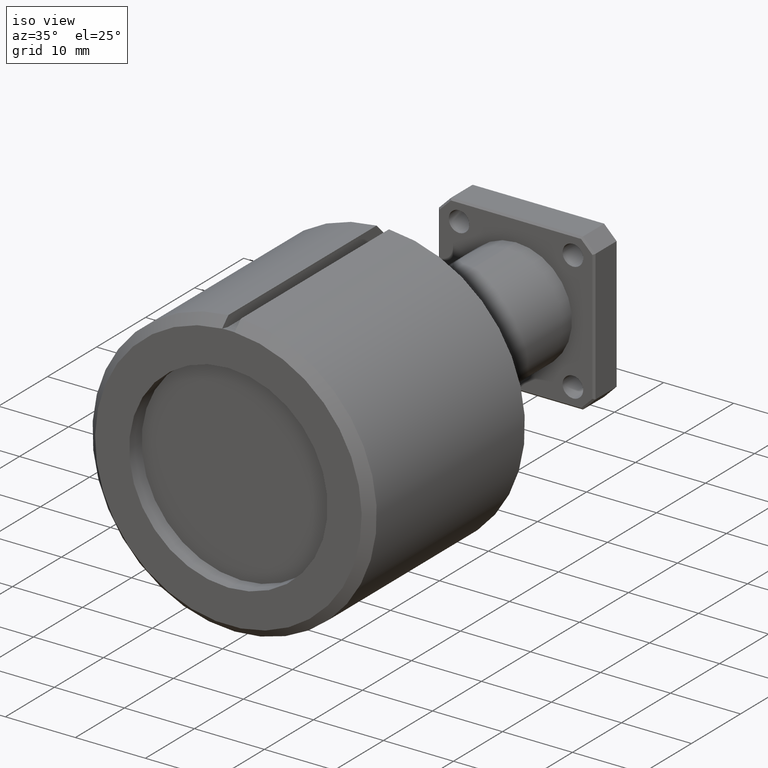
[diagram: clean part render]
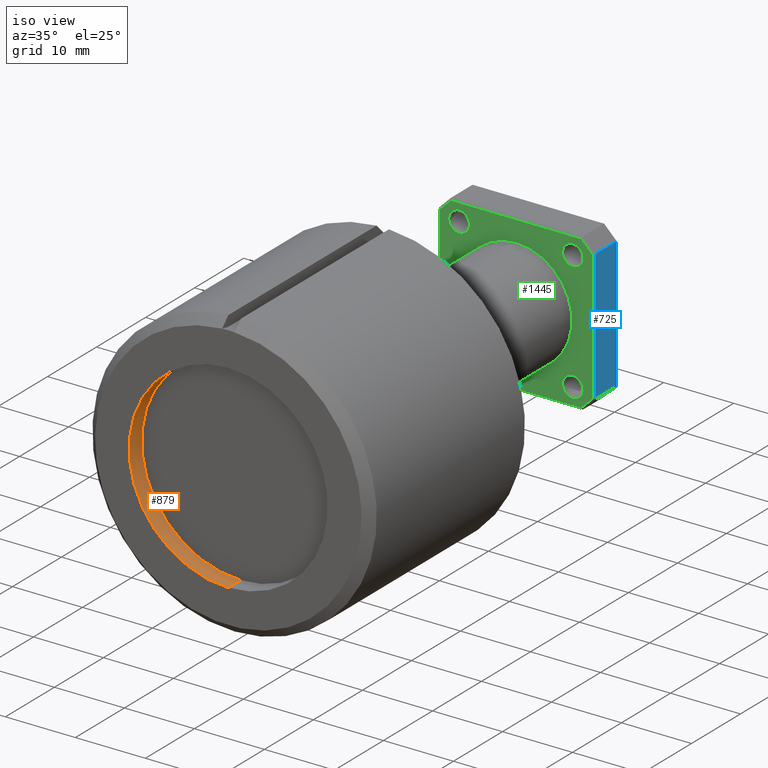
[diagram: same view with three faces highlighted in distinct colors, each labeled with its STEP entity id]
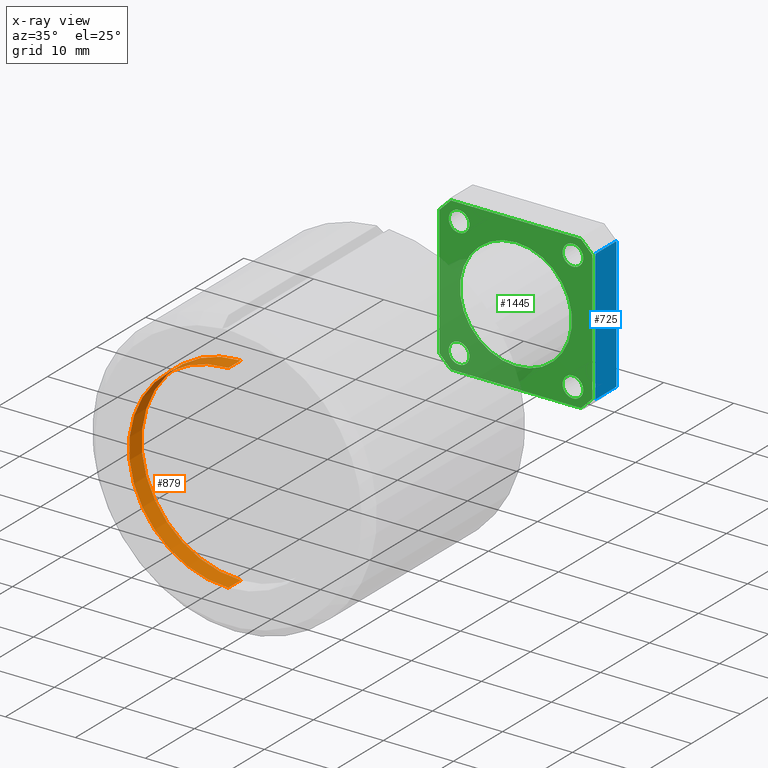
[diagram: x-ray of the same camera — body ghosted, the three highlighted faces saturated]
A machine part, iso view with three faces highlighted in distinct colors.
The next image is the same camera in x-ray (body ghosted, the three faces saturated) — at least one of them is partly hidden behind the body in this view.
Their STEP definitions:

[orange] entity #879 — the highlighted cylindrical surface (partial cylindrical patch) has radius 14.1862 mm, axis along (-0, -1, -0).
#6 = VERTEX_POINT ( 'NONE', #17 ) ;
#17 = CARTESIAN_POINT ( 'NONE',  ( 6.839774837917879664E-17, -1.033357296908698819, 2.378506395338603863 ) ) ;
#40 = DIRECTION ( 'NONE',  ( -0.000000000000000000, -1.000000000000000000, -0.000000000000000000 ) ) ;
#73 = ORIENTED_EDGE ( 'NONE', *, *, #1399, .F. ) ;
#74 = EDGE_CURVE ( 'NONE', #1497, #1557, #1198, .T. ) ;
#78 = DIRECTION ( 'NONE',  ( 0.000000000000000000, -1.000000000000000000, 0.000000000000000000 ) ) ;
#96 = CARTESIAN_POINT ( 'NONE',  ( 0.000000000000000000, -1.033357296908698819, 1.261486395338603739 ) ) ;
#129 = ORIENTED_EDGE ( 'NONE', *, *, #1486, .T. ) ;
#263 = EDGE_LOOP ( 'NONE', ( #73, #1221, #129, #703 ) ) ;
#313 = DIRECTION ( 'NONE',  ( 0.000000000000000000, 0.000000000000000000, -1.000000000000000000 ) ) ;
#346 = CARTESIAN_POINT ( 'NONE',  ( 0.000000000000000000, -1.133357296908698908, 1.261486395338603739 ) ) ;
#350 = AXIS2_PLACEMENT_3D ( 'NONE', #780, #78, #1167 ) ;
#425 = DIRECTION ( 'NONE',  ( -0.000000000000000000, -1.000000000000000000, -0.000000000000000000 ) ) ;
#534 = FACE_OUTER_BOUND ( 'NONE', #263, .T. ) ;
#703 = ORIENTED_EDGE ( 'NONE', *, *, #74, .F. ) ;
#750 = CIRCLE ( 'NONE', #1227, 0.5585099999999999509 ) ;
#780 = CARTESIAN_POINT ( 'NONE',  ( 0.000000000000000000, -1.133357296908698908, 1.819996395338603579 ) ) ;
#796 = DIRECTION ( 'NONE',  ( 0.000000000000000000, 0.000000000000000000, -1.000000000000000000 ) ) ;
#879 = ADVANCED_FACE ( 'NONE', ( #534 ), #1023, .F. ) ;
#964 = CARTESIAN_POINT ( 'NONE',  ( 0.000000000000000000, -1.033357296908698819, 1.261486395338603739 ) ) ;
#1023 = CYLINDRICAL_SURFACE ( 'NONE', #1111, 0.5585099999999999509 ) ;
#1067 = EDGE_CURVE ( 'NONE', #6, #1468, #1069, .T. ) ;
#1069 = LINE ( 'NONE', #1160, #1546 ) ;
#1111 = AXIS2_PLACEMENT_3D ( 'NONE', #1524, #425, #796 ) ;
#1158 = CARTESIAN_POINT ( 'NONE',  ( 0.000000000000000000, -1.033357296908698819, 1.819996395338603579 ) ) ;
#1160 = CARTESIAN_POINT ( 'NONE',  ( 6.839774837917880897E-17, -1.033357296908698819, 2.378506395338603863 ) ) ;
#1167 = DIRECTION ( 'NONE',  ( 0.000000000000000000, 0.000000000000000000, -1.000000000000000000 ) ) ;
#1174 = DIRECTION ( 'NONE',  ( 0.000000000000000000, -1.000000000000000000, 0.000000000000000000 ) ) ;
#1198 = LINE ( 'NONE', #964, #1318 ) ;
#1221 = ORIENTED_EDGE ( 'NONE', *, *, #1067, .T. ) ;
#1227 = AXIS2_PLACEMENT_3D ( 'NONE', #1158, #1174, #313 ) ;
#1288 = CARTESIAN_POINT ( 'NONE',  ( 6.839774837917879664E-17, -1.133357296908698908, 2.378506395338603863 ) ) ;
#1290 = DIRECTION ( 'NONE',  ( -0.000000000000000000, -1.000000000000000000, -0.000000000000000000 ) ) ;
#1318 = VECTOR ( 'NONE', #40, 39.37007874015748143 ) ;
#1399 = EDGE_CURVE ( 'NONE', #6, #1497, #750, .T. ) ;
#1459 = CIRCLE ( 'NONE', #350, 0.5585099999999999509 ) ;
#1468 = VERTEX_POINT ( 'NONE', #1288 ) ;
#1486 = EDGE_CURVE ( 'NONE', #1468, #1557, #1459, .T. ) ;
#1497 = VERTEX_POINT ( 'NONE', #96 ) ;
#1524 = CARTESIAN_POINT ( 'NONE',  ( 0.000000000000000000, -1.033357296908698819, 1.819996395338603579 ) ) ;
#1546 = VECTOR ( 'NONE', #1290, 39.37007874015748143 ) ;
#1557 = VERTEX_POINT ( 'NONE', #346 ) ;

[blue] entity #725 — the highlighted planar face has unit normal (-1, 0, 0).
#2 = DIRECTION ( 'NONE',  ( 1.552186360036512968E-16, 0.000000000000000000, 1.000000000000000000 ) ) ;
#82 = VECTOR ( 'NONE', #659, 39.37007874015748143 ) ;
#115 = ORIENTED_EDGE ( 'NONE', *, *, #1033, .T. ) ;
#154 = ORIENTED_EDGE ( 'NONE', *, *, #804, .T. ) ;
#185 = VECTOR ( 'NONE', #885, 39.37007874015748143 ) ;
#238 = CARTESIAN_POINT ( 'NONE',  ( 0.4400000000000000022, 1.186642703091300710, 2.189996395338603907 ) ) ;
#266 = CARTESIAN_POINT ( 'NONE',  ( 0.4399999999999998912, 1.186642703091300710, 1.449996395338603694 ) ) ;
#302 = LINE ( 'NONE', #1507, #82 ) ;
#420 = DIRECTION ( 'NONE',  ( -1.552186360036512968E-16, 0.000000000000000000, -1.000000000000000000 ) ) ;
#494 = FACE_OUTER_BOUND ( 'NONE', #1466, .T. ) ;
#502 = DIRECTION ( 'NONE',  ( -1.000000000000000000, 0.000000000000000000, 1.552186360036512968E-16 ) ) ;
#547 = CARTESIAN_POINT ( 'NONE',  ( 0.4399999999999998912, 1.356642703091300861, 1.449996395338603694 ) ) ;
#585 = EDGE_CURVE ( 'NONE', #1168, #1301, #847, .T. ) ;
#652 = VECTOR ( 'NONE', #420, 39.37007874015748143 ) ;
#659 = DIRECTION ( 'NONE',  ( 0.000000000000000000, -1.000000000000000000, 0.000000000000000000 ) ) ;
#705 = CARTESIAN_POINT ( 'NONE',  ( 0.4400000000000000022, 1.356642703091300861, 2.189996395338603907 ) ) ;
#725 = ADVANCED_FACE ( 'NONE', ( #494 ), #992, .F. ) ;
#768 = VERTEX_POINT ( 'NONE', #266 ) ;
#804 = EDGE_CURVE ( 'NONE', #768, #1168, #1232, .T. ) ;
#847 = LINE ( 'NONE', #705, #1172 ) ;
#885 = DIRECTION ( 'NONE',  ( 0.000000000000000000, 1.000000000000000000, 0.000000000000000000 ) ) ;
#898 = LINE ( 'NONE', #1027, #652 ) ;
#983 = CARTESIAN_POINT ( 'NONE',  ( 0.4399999999999998912, 1.366642703091300648, 1.379996395338603632 ) ) ;
#992 = PLANE ( 'NONE',  #1335 ) ;
#999 = CARTESIAN_POINT ( 'NONE',  ( 0.4399999999999998912, 1.366642703091300648, 1.449996395338603694 ) ) ;
#1001 = CARTESIAN_POINT ( 'NONE',  ( 0.4400000000000000022, 1.356642703091300861, 2.189996395338603907 ) ) ;
#1027 = CARTESIAN_POINT ( 'NONE',  ( 0.4399999999999998912, 1.186642703091300710, 1.379996395338603632 ) ) ;
#1033 = EDGE_CURVE ( 'NONE', #1559, #768, #898, .T. ) ;
#1168 = VERTEX_POINT ( 'NONE', #547 ) ;
#1172 = VECTOR ( 'NONE', #2, 39.37007874015748143 ) ;
#1213 = ORIENTED_EDGE ( 'NONE', *, *, #1475, .T. ) ;
#1232 = LINE ( 'NONE', #999, #185 ) ;
#1301 = VERTEX_POINT ( 'NONE', #1001 ) ;
#1335 = AXIS2_PLACEMENT_3D ( 'NONE', #983, #502, #1465 ) ;
#1465 = DIRECTION ( 'NONE',  ( 1.552186360036512968E-16, 0.000000000000000000, 1.000000000000000000 ) ) ;
#1466 = EDGE_LOOP ( 'NONE', ( #1213, #115, #154, #1483 ) ) ;
#1475 = EDGE_CURVE ( 'NONE', #1301, #1559, #302, .T. ) ;
#1483 = ORIENTED_EDGE ( 'NONE', *, *, #585, .T. ) ;
#1507 = CARTESIAN_POINT ( 'NONE',  ( 0.4400000000000000022, 1.366642703091300648, 2.189996395338603907 ) ) ;
#1559 = VERTEX_POINT ( 'NONE', #238 ) ;

[green] entity #1445 — the highlighted planar face has unit normal (0, 1, 0).
#19 = DIRECTION ( 'NONE',  ( 0.000000000000000000, 1.000000000000000000, 0.000000000000000000 ) ) ;
#53 = CARTESIAN_POINT ( 'NONE',  ( -0.4329289321881343855, 1.176642703091300923, 2.182925327526738180 ) ) ;
#69 = CARTESIAN_POINT ( 'NONE',  ( 0.3658578643762689930, 1.176642703091300923, 1.389996395338603863 ) ) ;
#72 = CARTESIAN_POINT ( 'NONE',  ( -0.3200000000000001177, 1.176642703091300701, 2.212996395338604039 ) ) ;
#75 = DIRECTION ( 'NONE',  ( -1.552186360036512968E-16, 0.000000000000000000, -1.000000000000000000 ) ) ;
#80 = EDGE_CURVE ( 'NONE', #1131, #370, #754, .T. ) ;
#81 = CARTESIAN_POINT ( 'NONE',  ( 0.3200000000000002842, 1.176642703091300701, 2.154996395338603765 ) ) ;
#91 = DIRECTION ( 'NONE',  ( 0.000000000000000000, 0.000000000000000000, 1.000000000000000000 ) ) ;
#95 = DIRECTION ( 'NONE',  ( -1.000000000000000000, 0.000000000000000000, 0.000000000000000000 ) ) ;
#99 = AXIS2_PLACEMENT_3D ( 'NONE', #1521, #198, #1402 ) ;
#107 = CARTESIAN_POINT ( 'NONE',  ( 0.000000000000000000, 1.176642703091300923, 2.249996395338603516 ) ) ;
#109 = AXIS2_PLACEMENT_3D ( 'NONE', #1207, #972, #1455 ) ;
#126 = EDGE_CURVE ( 'NONE', #460, #891, #989, .T. ) ;
#134 = AXIS2_PLACEMENT_3D ( 'NONE', #760, #292, #175 ) ;
#135 = LINE ( 'NONE', #53, #732 ) ;
#138 = ORIENTED_EDGE ( 'NONE', *, *, #1286, .F. ) ;
#144 = VECTOR ( 'NONE', #441, 39.37007874015748143 ) ;
#164 = CARTESIAN_POINT ( 'NONE',  ( -0.4299999999999998268, 1.176642703091300923, 2.185854259714872683 ) ) ;
#175 = DIRECTION ( 'NONE',  ( 0.000000000000000000, 0.000000000000000000, 1.000000000000000000 ) ) ;
#177 = AXIS2_PLACEMENT_3D ( 'NONE', #1406, #326, #436 ) ;
#179 = ORIENTED_EDGE ( 'NONE', *, *, #845, .T. ) ;
#187 = FACE_BOUND ( 'NONE', #1013, .T. ) ;
#198 = DIRECTION ( 'NONE',  ( 0.000000000000000000, 1.000000000000000000, 0.000000000000000000 ) ) ;
#201 = ORIENTED_EDGE ( 'NONE', *, *, #126, .T. ) ;
#213 = LINE ( 'NONE', #1176, #1438 ) ;
#217 = CARTESIAN_POINT ( 'NONE',  ( 0.4299999999999996603, 1.176642703091300923, 1.454138530962334697 ) ) ;
#227 = CIRCLE ( 'NONE', #1305, 0.05800000000000003764 ) ;
#248 = VERTEX_POINT ( 'NONE', #164 ) ;
#278 = VECTOR ( 'NONE', #389, 39.37007874015748143 ) ;
#288 = EDGE_CURVE ( 'NONE', #340, #886, #740, .T. ) ;
#291 = ORIENTED_EDGE ( 'NONE', *, *, #495, .T. ) ;
#292 = DIRECTION ( 'NONE',  ( 0.000000000000000000, 1.000000000000000000, 0.000000000000000000 ) ) ;
#304 = CARTESIAN_POINT ( 'NONE',  ( -0.3200000000000001177, 1.176642703091300701, 1.484996395338603614 ) ) ;
#321 = CARTESIAN_POINT ( 'NONE',  ( -0.4299999999999999933, 1.176642703091300923, 1.454138530962334475 ) ) ;
#326 = DIRECTION ( 'NONE',  ( 0.000000000000000000, 1.000000000000000000, 0.000000000000000000 ) ) ;
#328 = CARTESIAN_POINT ( 'NONE',  ( -0.3629289321881341013, 1.176642703091300923, 1.387067463150468916 ) ) ;
#331 = EDGE_LOOP ( 'NONE', ( #201, #1046, #291, #421, #179, #1372, #1499, #612 ) ) ;
#334 = FACE_BOUND ( 'NONE', #1121, .T. ) ;
#340 = VERTEX_POINT ( 'NONE', #1410 ) ;
#355 = AXIS2_PLACEMENT_3D ( 'NONE', #1478, #1214, #1205 ) ;
#359 = EDGE_CURVE ( 'NONE', #1171, #1029, #1217, .T. ) ;
#361 = DIRECTION ( 'NONE',  ( 0.000000000000000000, 1.000000000000000000, 0.000000000000000000 ) ) ;
#370 = VERTEX_POINT ( 'NONE', #72 ) ;
#372 = ORIENTED_EDGE ( 'NONE', *, *, #973, .F. ) ;
#389 = DIRECTION ( 'NONE',  ( 1.552186360036512968E-16, 0.000000000000000000, 1.000000000000000000 ) ) ;
#407 = CIRCLE ( 'NONE', #134, 0.05800000000000003764 ) ;
#417 = EDGE_CURVE ( 'NONE', #987, #460, #912, .T. ) ;
#419 = CARTESIAN_POINT ( 'NONE',  ( 0.3199999999999998401, 1.176642703091300701, 1.542996395338603222 ) ) ;
#421 = ORIENTED_EDGE ( 'NONE', *, *, #931, .T. ) ;
#427 = DIRECTION ( 'NONE',  ( 0.000000000000000000, 0.000000000000000000, 1.000000000000000000 ) ) ;
#429 = DIRECTION ( 'NONE',  ( 0.000000000000000000, 0.000000000000000000, 1.000000000000000000 ) ) ;
#433 = CARTESIAN_POINT ( 'NONE',  ( -0.4300000000000002154, 1.176642703091300923, 6.674401348157008968E-17 ) ) ;
#436 = DIRECTION ( 'NONE',  ( 0.000000000000000000, -0.000000000000000000, 1.000000000000000000 ) ) ;
#441 = DIRECTION ( 'NONE',  ( 0.7071067811865461294, 0.000000000000000000, 0.7071067811865489050 ) ) ;
#443 = FACE_BOUND ( 'NONE', #1501, .T. ) ;
#451 = CARTESIAN_POINT ( 'NONE',  ( -0.3200000000000001177, 1.176642703091300701, 2.096996395338603936 ) ) ;
#460 = VERTEX_POINT ( 'NONE', #217 ) ;
#463 = CARTESIAN_POINT ( 'NONE',  ( 0.3200000000000002842, 1.176642703091300701, 2.212996395338604039 ) ) ;
#475 = DIRECTION ( 'NONE',  ( 0.000000000000000000, 0.000000000000000000, -1.000000000000000000 ) ) ;
#495 = EDGE_CURVE ( 'NONE', #1261, #943, #1178, .T. ) ;
#510 = CIRCLE ( 'NONE', #1474, 0.05800000000000003764 ) ;
#530 = CARTESIAN_POINT ( 'NONE',  ( -0.3658578643762686600, 1.176642703091300923, 2.249996395338603516 ) ) ;
#553 = CARTESIAN_POINT ( 'NONE',  ( -0.3200000000000001177, 1.176642703091300701, 1.426996395338603563 ) ) ;
#555 = EDGE_CURVE ( 'NONE', #1385, #963, #510, .T. ) ;
#561 = ORIENTED_EDGE ( 'NONE', *, *, #288, .T. ) ;
#591 = VECTOR ( 'NONE', #95, 39.37007874015748143 ) ;
#605 = EDGE_LOOP ( 'NONE', ( #372, #138 ) ) ;
#608 = DIRECTION ( 'NONE',  ( -0.7071067811865474617, 0.000000000000000000, -0.7071067811865474617 ) ) ;
#612 = ORIENTED_EDGE ( 'NONE', *, *, #417, .T. ) ;
#632 = EDGE_CURVE ( 'NONE', #370, #1131, #957, .T. ) ;
#635 = ORIENTED_EDGE ( 'NONE', *, *, #80, .T. ) ;
#647 = LINE ( 'NONE', #869, #1264 ) ;
#649 = VERTEX_POINT ( 'NONE', #1199 ) ;
#665 = LINE ( 'NONE', #433, #1390 ) ;
#687 = DIRECTION ( 'NONE',  ( 0.000000000000000000, 1.000000000000000000, 0.000000000000000000 ) ) ;
#697 = EDGE_CURVE ( 'NONE', #891, #1261, #647, .T. ) ;
#701 = EDGE_CURVE ( 'NONE', #963, #1385, #407, .T. ) ;
#728 = AXIS2_PLACEMENT_3D ( 'NONE', #1452, #1102, #475 ) ;
#732 = VECTOR ( 'NONE', #608, 39.37007874015748854 ) ;
#740 = CIRCLE ( 'NONE', #99, 0.05800000000000003764 ) ;
#754 = CIRCLE ( 'NONE', #355, 0.05800000000000003764 ) ;
#760 = CARTESIAN_POINT ( 'NONE',  ( 0.3199999999999998401, 1.176642703091300701, 1.484996395338603392 ) ) ;
#779 = ORIENTED_EDGE ( 'NONE', *, *, #359, .T. ) ;
#783 = CIRCLE ( 'NONE', #810, 0.05800000000000003764 ) ;
#790 = FACE_BOUND ( 'NONE', #939, .T. ) ;
#806 = CARTESIAN_POINT ( 'NONE',  ( 0.4329289321881342190, 1.176642703091300923, 1.457067463150469422 ) ) ;
#810 = AXIS2_PLACEMENT_3D ( 'NONE', #304, #1509, #429 ) ;
#811 = VERTEX_POINT ( 'NONE', #1352 ) ;
#815 = CARTESIAN_POINT ( 'NONE',  ( 0.3200000000000002842, 1.176642703091300701, 2.154996395338603765 ) ) ;
#835 = ORIENTED_EDGE ( 'NONE', *, *, #555, .T. ) ;
#843 = ORIENTED_EDGE ( 'NONE', *, *, #1035, .T. ) ;
#845 = EDGE_CURVE ( 'NONE', #248, #1415, #665, .T. ) ;
#869 = CARTESIAN_POINT ( 'NONE',  ( 0.3629289321881337682, 1.176642703091300923, 2.252925327526738464 ) ) ;
#886 = VERTEX_POINT ( 'NONE', #553 ) ;
#891 = VERTEX_POINT ( 'NONE', #1395 ) ;
#905 = FACE_BOUND ( 'NONE', #605, .T. ) ;
#912 = LINE ( 'NONE', #806, #144 ) ;
#931 = EDGE_CURVE ( 'NONE', #943, #248, #135, .T. ) ;
#939 = EDGE_LOOP ( 'NONE', ( #1175, #635 ) ) ;
#943 = VERTEX_POINT ( 'NONE', #530 ) ;
#957 = CIRCLE ( 'NONE', #1085, 0.05800000000000003764 ) ;
#963 = VERTEX_POINT ( 'NONE', #1215 ) ;
#972 = DIRECTION ( 'NONE',  ( -0.000000000000000000, -1.000000000000000000, -0.000000000000000000 ) ) ;
#973 = EDGE_CURVE ( 'NONE', #649, #1553, #984, .T. ) ;
#984 = CIRCLE ( 'NONE', #109, 0.3150000000000000577 ) ;
#987 = VERTEX_POINT ( 'NONE', #69 ) ;
#989 = LINE ( 'NONE', #1470, #278 ) ;
#1013 = EDGE_LOOP ( 'NONE', ( #561, #843 ) ) ;
#1029 = VERTEX_POINT ( 'NONE', #1500 ) ;
#1030 = DIRECTION ( 'NONE',  ( 0.000000000000000000, 1.000000000000000000, 0.000000000000000000 ) ) ;
#1035 = EDGE_CURVE ( 'NONE', #886, #340, #783, .T. ) ;
#1045 = FACE_OUTER_BOUND ( 'NONE', #331, .T. ) ;
#1046 = ORIENTED_EDGE ( 'NONE', *, *, #697, .T. ) ;
#1047 = DIRECTION ( 'NONE',  ( 1.000000000000000000, 0.000000000000000000, 0.000000000000000000 ) ) ;
#1078 = EDGE_CURVE ( 'NONE', #1415, #811, #1408, .T. ) ;
#1085 = AXIS2_PLACEMENT_3D ( 'NONE', #1439, #361, #1429 ) ;
#1094 = DIRECTION ( 'NONE',  ( 0.000000000000000000, 0.000000000000000000, 1.000000000000000000 ) ) ;
#1102 = DIRECTION ( 'NONE',  ( -0.000000000000000000, -1.000000000000000000, -0.000000000000000000 ) ) ;
#1116 = EDGE_CURVE ( 'NONE', #811, #987, #213, .T. ) ;
#1121 = EDGE_LOOP ( 'NONE', ( #835, #1411 ) ) ;
#1131 = VERTEX_POINT ( 'NONE', #451 ) ;
#1151 = PLANE ( 'NONE',  #177 ) ;
#1171 = VERTEX_POINT ( 'NONE', #463 ) ;
#1175 = ORIENTED_EDGE ( 'NONE', *, *, #632, .T. ) ;
#1176 = CARTESIAN_POINT ( 'NONE',  ( 0.000000000000000000, 1.176642703091300923, 1.389996395338603863 ) ) ;
#1178 = LINE ( 'NONE', #107, #591 ) ;
#1192 = AXIS2_PLACEMENT_3D ( 'NONE', #81, #1030, #91 ) ;
#1199 = CARTESIAN_POINT ( 'NONE',  ( 0.000000000000000000, 1.176642703091300923, 1.504996395338603632 ) ) ;
#1205 = DIRECTION ( 'NONE',  ( 0.000000000000000000, 0.000000000000000000, 1.000000000000000000 ) ) ;
#1207 = CARTESIAN_POINT ( 'NONE',  ( 0.000000000000000000, 1.176642703091300923, 1.819996395338603579 ) ) ;
#1214 = DIRECTION ( 'NONE',  ( 0.000000000000000000, 1.000000000000000000, 0.000000000000000000 ) ) ;
#1215 = CARTESIAN_POINT ( 'NONE',  ( 0.3199999999999998401, 1.176642703091300701, 1.426996395338603341 ) ) ;
#1217 = CIRCLE ( 'NONE', #1192, 0.05800000000000003764 ) ;
#1261 = VERTEX_POINT ( 'NONE', #1560 ) ;
#1264 = VECTOR ( 'NONE', #1472, 39.37007874015748143 ) ;
#1286 = EDGE_CURVE ( 'NONE', #1553, #649, #1488, .T. ) ;
#1300 = CARTESIAN_POINT ( 'NONE',  ( 3.857637417314163305E-17, 1.176642703091300923, 2.134996395338603747 ) ) ;
#1305 = AXIS2_PLACEMENT_3D ( 'NONE', #815, #687, #427 ) ;
#1352 = CARTESIAN_POINT ( 'NONE',  ( -0.3658578643762689930, 1.176642703091300923, 1.389996395338603863 ) ) ;
#1372 = ORIENTED_EDGE ( 'NONE', *, *, #1078, .T. ) ;
#1385 = VERTEX_POINT ( 'NONE', #419 ) ;
#1390 = VECTOR ( 'NONE', #75, 39.37007874015748143 ) ;
#1395 = CARTESIAN_POINT ( 'NONE',  ( 0.4299999999999998268, 1.176642703091300923, 2.185854259714872683 ) ) ;
#1402 = DIRECTION ( 'NONE',  ( 0.000000000000000000, 0.000000000000000000, 1.000000000000000000 ) ) ;
#1406 = CARTESIAN_POINT ( 'NONE',  ( 0.000000000000000000, 1.176642703091300923, 0.000000000000000000 ) ) ;
#1408 = LINE ( 'NONE', #328, #1462 ) ;
#1410 = CARTESIAN_POINT ( 'NONE',  ( -0.3200000000000001177, 1.176642703091300701, 1.542996395338603666 ) ) ;
#1411 = ORIENTED_EDGE ( 'NONE', *, *, #701, .T. ) ;
#1415 = VERTEX_POINT ( 'NONE', #321 ) ;
#1424 = DIRECTION ( 'NONE',  ( 0.7071067811865502373, 0.000000000000000000, -0.7071067811865447972 ) ) ;
#1429 = DIRECTION ( 'NONE',  ( 0.000000000000000000, 0.000000000000000000, 1.000000000000000000 ) ) ;
#1433 = ORIENTED_EDGE ( 'NONE', *, *, #1493, .T. ) ;
#1438 = VECTOR ( 'NONE', #1047, 39.37007874015748143 ) ;
#1439 = CARTESIAN_POINT ( 'NONE',  ( -0.3200000000000001177, 1.176642703091300701, 2.154996395338603765 ) ) ;
#1445 = ADVANCED_FACE ( 'NONE', ( #1045, #790, #443, #334, #187, #905 ), #1151, .F. ) ;
#1452 = CARTESIAN_POINT ( 'NONE',  ( 0.000000000000000000, 1.176642703091300923, 1.819996395338603579 ) ) ;
#1455 = DIRECTION ( 'NONE',  ( 0.000000000000000000, 0.000000000000000000, -1.000000000000000000 ) ) ;
#1462 = VECTOR ( 'NONE', #1424, 39.37007874015748143 ) ;
#1470 = CARTESIAN_POINT ( 'NONE',  ( 0.4299999999999994937, 1.176642703091300923, -6.674401348156999107E-17 ) ) ;
#1472 = DIRECTION ( 'NONE',  ( -0.7071067811865502373, 0.000000000000000000, 0.7071067811865447972 ) ) ;
#1474 = AXIS2_PLACEMENT_3D ( 'NONE', #1558, #19, #1094 ) ;
#1478 = CARTESIAN_POINT ( 'NONE',  ( -0.3200000000000001177, 1.176642703091300701, 2.154996395338603765 ) ) ;
#1488 = CIRCLE ( 'NONE', #728, 0.3150000000000000577 ) ;
#1493 = EDGE_CURVE ( 'NONE', #1029, #1171, #227, .T. ) ;
#1499 = ORIENTED_EDGE ( 'NONE', *, *, #1116, .T. ) ;
#1500 = CARTESIAN_POINT ( 'NONE',  ( 0.3200000000000002842, 1.176642703091300701, 2.096996395338603936 ) ) ;
#1501 = EDGE_LOOP ( 'NONE', ( #779, #1433 ) ) ;
#1509 = DIRECTION ( 'NONE',  ( 0.000000000000000000, 1.000000000000000000, 0.000000000000000000 ) ) ;
#1521 = CARTESIAN_POINT ( 'NONE',  ( -0.3200000000000001177, 1.176642703091300701, 1.484996395338603614 ) ) ;
#1553 = VERTEX_POINT ( 'NONE', #1300 ) ;
#1558 = CARTESIAN_POINT ( 'NONE',  ( 0.3199999999999998401, 1.176642703091300701, 1.484996395338603392 ) ) ;
#1560 = CARTESIAN_POINT ( 'NONE',  ( 0.3658578643762683824, 1.176642703091300923, 2.249996395338603516 ) ) ;